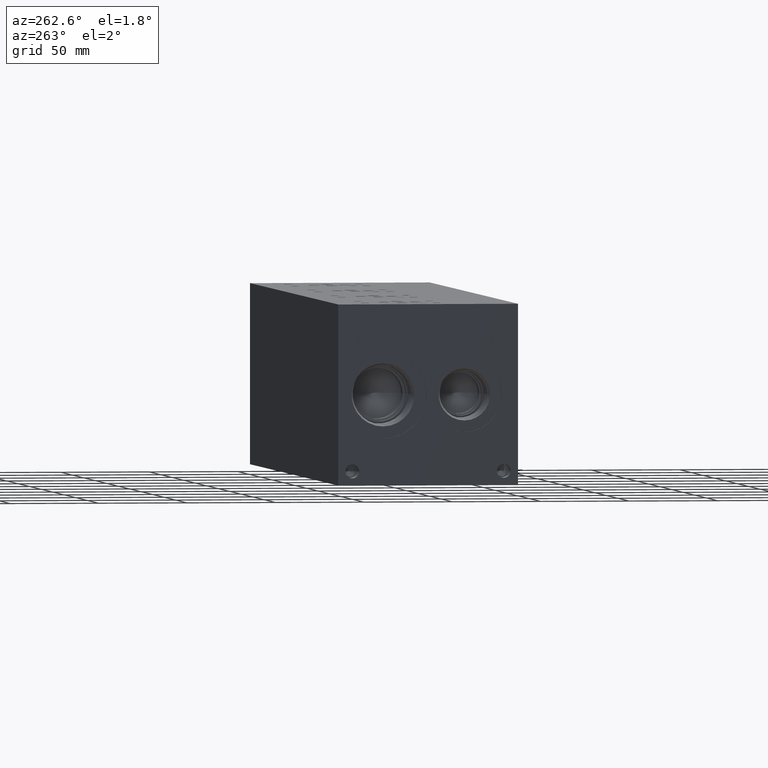
[diagram: clean part render]
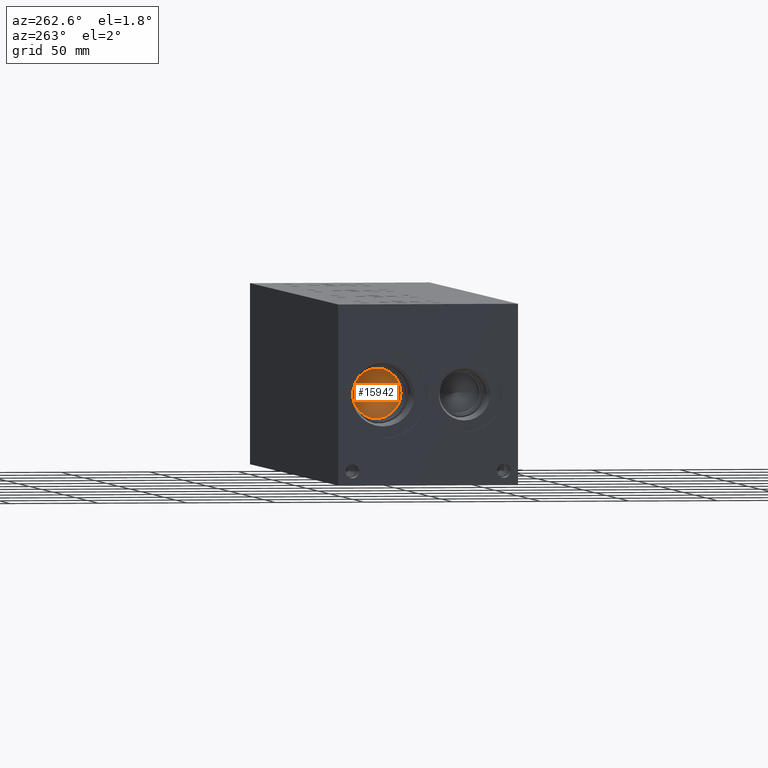
[diagram: same view with one face highlighted and labeled with its STEP entity id]
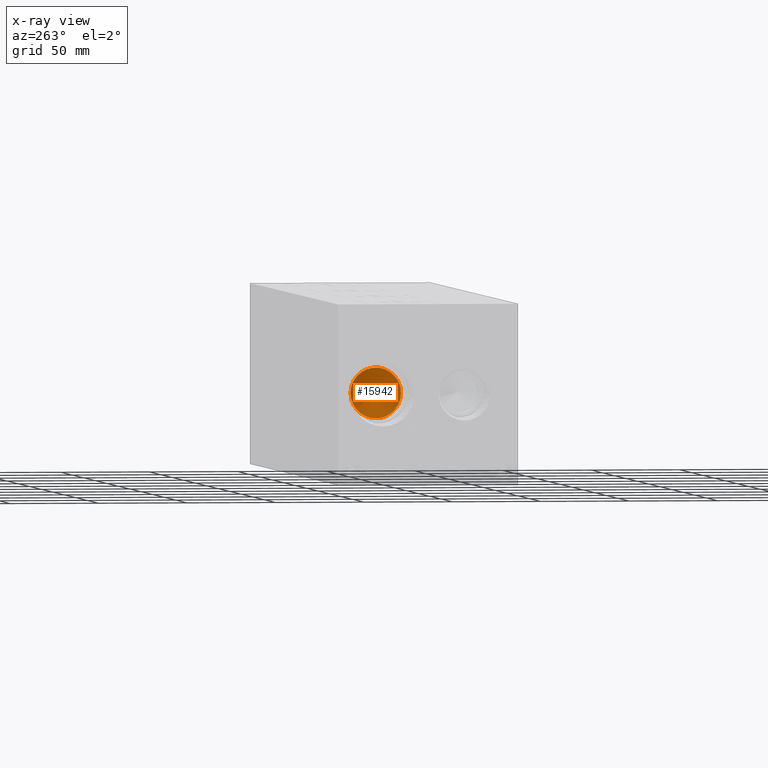
[diagram: x-ray of the same camera — body ghosted, the highlighted face saturated]
A machine part, auxiliary view. The second image highlights one B-rep face of the part: STEP entity #15942.
The next image is the same camera in x-ray: the body ghosted, the highlighted face saturated — about 0% of this face is hidden behind the body in this view.
In plain terms, the highlighted conical surface has half-angle 60 deg.
Its self-contained STEP definition (entity closure, byte-faithful):
#50=CONICAL_SURFACE('',#16816,7.14375,1.0471975511966);
#593=CIRCLE('',#16817,14.2875);
#594=CIRCLE('',#16818,14.2875);
#2036=FACE_OUTER_BOUND('',#2966,.T.);
#2966=EDGE_LOOP('',(#13412,#13413,#13414,#13415));
#4479=LINE('',#26882,#5900);
#5900=VECTOR('',#19941,7.14375);
#7268=VERTEX_POINT('',#26878);
#7269=VERTEX_POINT('',#26879);
#7270=VERTEX_POINT('',#26881);
#9404=EDGE_CURVE('',#7268,#7269,#593,.T.);
#9405=EDGE_CURVE('',#7269,#7270,#4479,.T.);
#9406=EDGE_CURVE('',#7269,#7268,#594,.T.);
#13412=ORIENTED_EDGE('',*,*,#9404,.T.);
#13413=ORIENTED_EDGE('',*,*,#9405,.T.);
#13414=ORIENTED_EDGE('',*,*,#9405,.F.);
#13415=ORIENTED_EDGE('',*,*,#9406,.T.);
#15942=ADVANCED_FACE('',(#2036),#50,.F.);
#16816=AXIS2_PLACEMENT_3D('',#26877,#19937,#19938);
#16817=AXIS2_PLACEMENT_3D('',#26880,#19939,#19940);
#16818=AXIS2_PLACEMENT_3D('',#26883,#19942,#19943);
#19937=DIRECTION('center_axis',(-1.,0.,0.));
#19938=DIRECTION('ref_axis',(0.,1.,0.));
#19939=DIRECTION('center_axis',(-1.,0.,0.));
#19940=DIRECTION('ref_axis',(0.,1.,0.));
#19941=DIRECTION('',(0.5,0.866025403784438,-1.06057523872491E-16));
#19942=DIRECTION('center_axis',(-1.,0.,0.));
#19943=DIRECTION('ref_axis',(0.,1.,0.));
#26877=CARTESIAN_POINT('Origin',(36.7725059855234,76.2,50.8));
#26878=CARTESIAN_POINT('',(32.64806,90.4875,50.8));
#26879=CARTESIAN_POINT('',(32.64806,61.9125,50.8));
#26880=CARTESIAN_POINT('Origin',(32.64806,76.2,50.8));
#26881=CARTESIAN_POINT('',(40.8969519710468,76.2,50.8));
#26882=CARTESIAN_POINT('',(36.7725059855234,69.05625,50.8));
#26883=CARTESIAN_POINT('Origin',(32.64806,76.2,50.8));